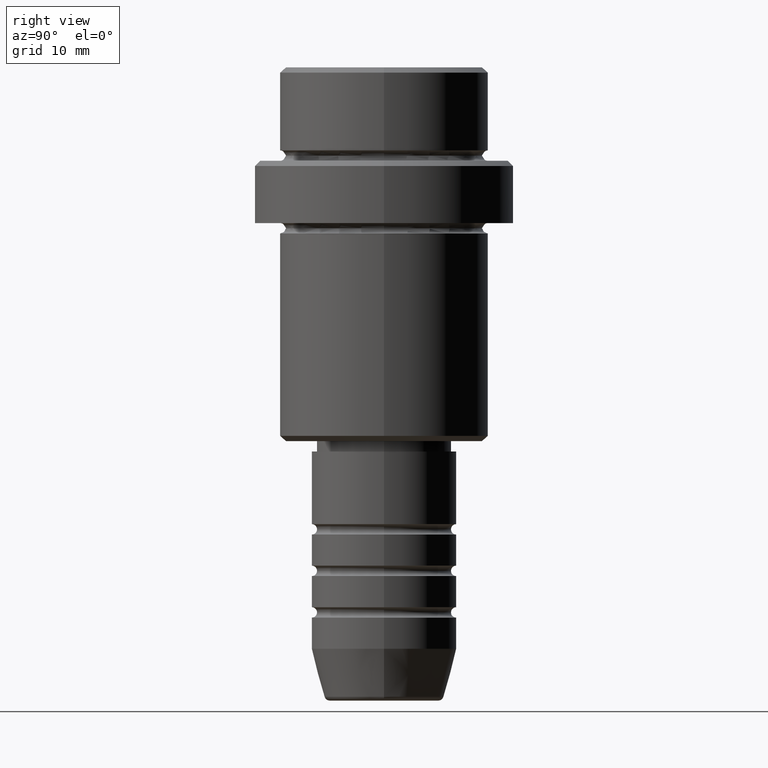
[diagram: clean part render]
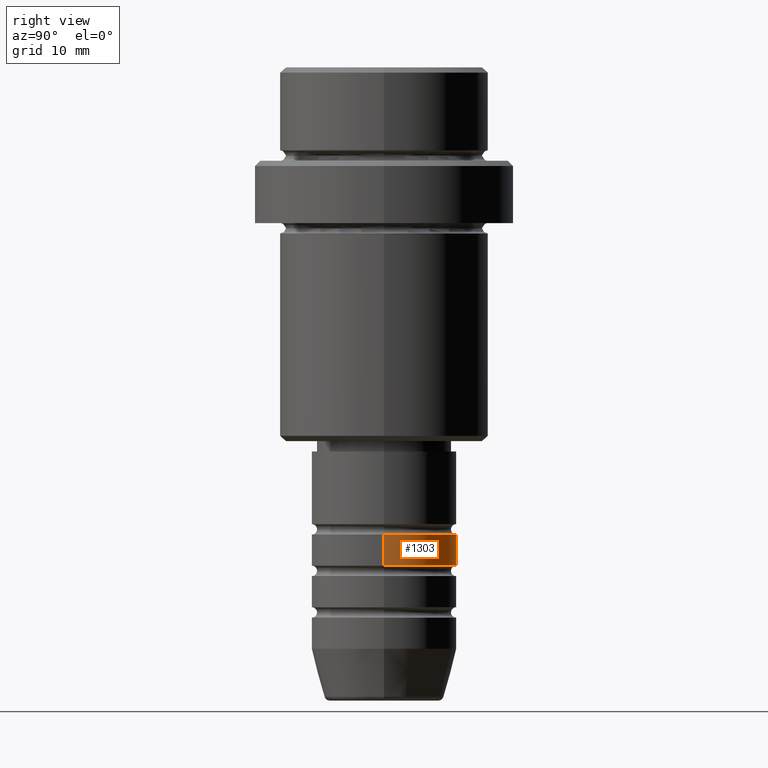
[diagram: same view with one face highlighted and labeled with its STEP entity id]
A machine part, right view. The second image highlights one B-rep face of the part: STEP entity #1303.
In plain terms, the highlighted cylindrical surface (partial cylindrical patch) has radius 7 mm, axis along (-0, -0, 1).
Its self-contained STEP definition (entity closure, byte-faithful):
#106 = CARTESIAN_POINT ( 'NONE',  ( 0.000000000000000000, 0.000000000000000000, 0.000000000000000000 ) ) ;
#139 = AXIS2_PLACEMENT_3D ( 'NONE', #401, #1292, #737 ) ;
#146 = VERTEX_POINT ( 'NONE', #730 ) ;
#262 = ORIENTED_EDGE ( 'NONE', *, *, #631, .F. ) ;
#284 = DIRECTION ( 'NONE',  ( -0.000000000000000000, -0.000000000000000000, 1.000000000000000000 ) ) ;
#306 = CYLINDRICAL_SURFACE ( 'NONE', #1321, 7.000000000000000000 ) ;
#310 = DIRECTION ( 'NONE',  ( 1.000000000000000000, 0.000000000000000000, 0.000000000000000000 ) ) ;
#323 = EDGE_CURVE ( 'NONE', #1238, #850, #655, .T. ) ;
#382 = DIRECTION ( 'NONE',  ( -0.000000000000000000, -0.000000000000000000, 1.000000000000000000 ) ) ;
#401 = CARTESIAN_POINT ( 'NONE',  ( 0.000000000000000000, 0.000000000000000000, -44.99999999999989342 ) ) ;
#448 = LINE ( 'NONE', #506, #799 ) ;
#456 = EDGE_LOOP ( 'NONE', ( #1297, #1157, #989, #262 ) ) ;
#467 = CARTESIAN_POINT ( 'NONE',  ( -7.000000000000000000, 8.572527594031473190E-16, 0.000000000000000000 ) ) ;
#468 = VERTEX_POINT ( 'NONE', #988 ) ;
#506 = CARTESIAN_POINT ( 'NONE',  ( 7.000000000000000000, 0.000000000000000000, 0.000000000000000000 ) ) ;
#507 = FACE_OUTER_BOUND ( 'NONE', #456, .T. ) ;
#537 = DIRECTION ( 'NONE',  ( -0.000000000000000000, -0.000000000000000000, 1.000000000000000000 ) ) ;
#558 = EDGE_CURVE ( 'NONE', #146, #468, #1195, .T. ) ;
#631 = EDGE_CURVE ( 'NONE', #1238, #146, #448, .T. ) ;
#655 = CIRCLE ( 'NONE', #872, 7.000000000000000000 ) ;
#730 = CARTESIAN_POINT ( 'NONE',  ( 7.000000000000000000, 0.000000000000000000, -44.99999999999989342 ) ) ;
#737 = DIRECTION ( 'NONE',  ( 1.000000000000000000, 0.000000000000000000, 0.000000000000000000 ) ) ;
#799 = VECTOR ( 'NONE', #1388, 1000.000000000000000 ) ;
#808 = CARTESIAN_POINT ( 'NONE',  ( 7.000000000000000000, 0.000000000000000000, -47.99999999999989342 ) ) ;
#850 = VERTEX_POINT ( 'NONE', #1386 ) ;
#872 = AXIS2_PLACEMENT_3D ( 'NONE', #1309, #537, #994 ) ;
#923 = VECTOR ( 'NONE', #382, 1000.000000000000000 ) ;
#988 = CARTESIAN_POINT ( 'NONE',  ( -7.000000000000000000, 8.572527594031473190E-16, -44.99999999999989342 ) ) ;
#989 = ORIENTED_EDGE ( 'NONE', *, *, #558, .F. ) ;
#994 = DIRECTION ( 'NONE',  ( 1.000000000000000000, 0.000000000000000000, 0.000000000000000000 ) ) ;
#1057 = LINE ( 'NONE', #467, #923 ) ;
#1157 = ORIENTED_EDGE ( 'NONE', *, *, #1206, .T. ) ;
#1195 = CIRCLE ( 'NONE', #139, 7.000000000000000000 ) ;
#1206 = EDGE_CURVE ( 'NONE', #850, #468, #1057, .T. ) ;
#1238 = VERTEX_POINT ( 'NONE', #808 ) ;
#1292 = DIRECTION ( 'NONE',  ( -0.000000000000000000, -0.000000000000000000, 1.000000000000000000 ) ) ;
#1297 = ORIENTED_EDGE ( 'NONE', *, *, #323, .T. ) ;
#1303 = ADVANCED_FACE ( 'NONE', ( #507 ), #306, .T. ) ;
#1309 = CARTESIAN_POINT ( 'NONE',  ( 0.000000000000000000, 0.000000000000000000, -47.99999999999989342 ) ) ;
#1321 = AXIS2_PLACEMENT_3D ( 'NONE', #106, #284, #310 ) ;
#1386 = CARTESIAN_POINT ( 'NONE',  ( -7.000000000000000000, 8.572527594031473190E-16, -47.99999999999989342 ) ) ;
#1388 = DIRECTION ( 'NONE',  ( -0.000000000000000000, -0.000000000000000000, 1.000000000000000000 ) ) ;